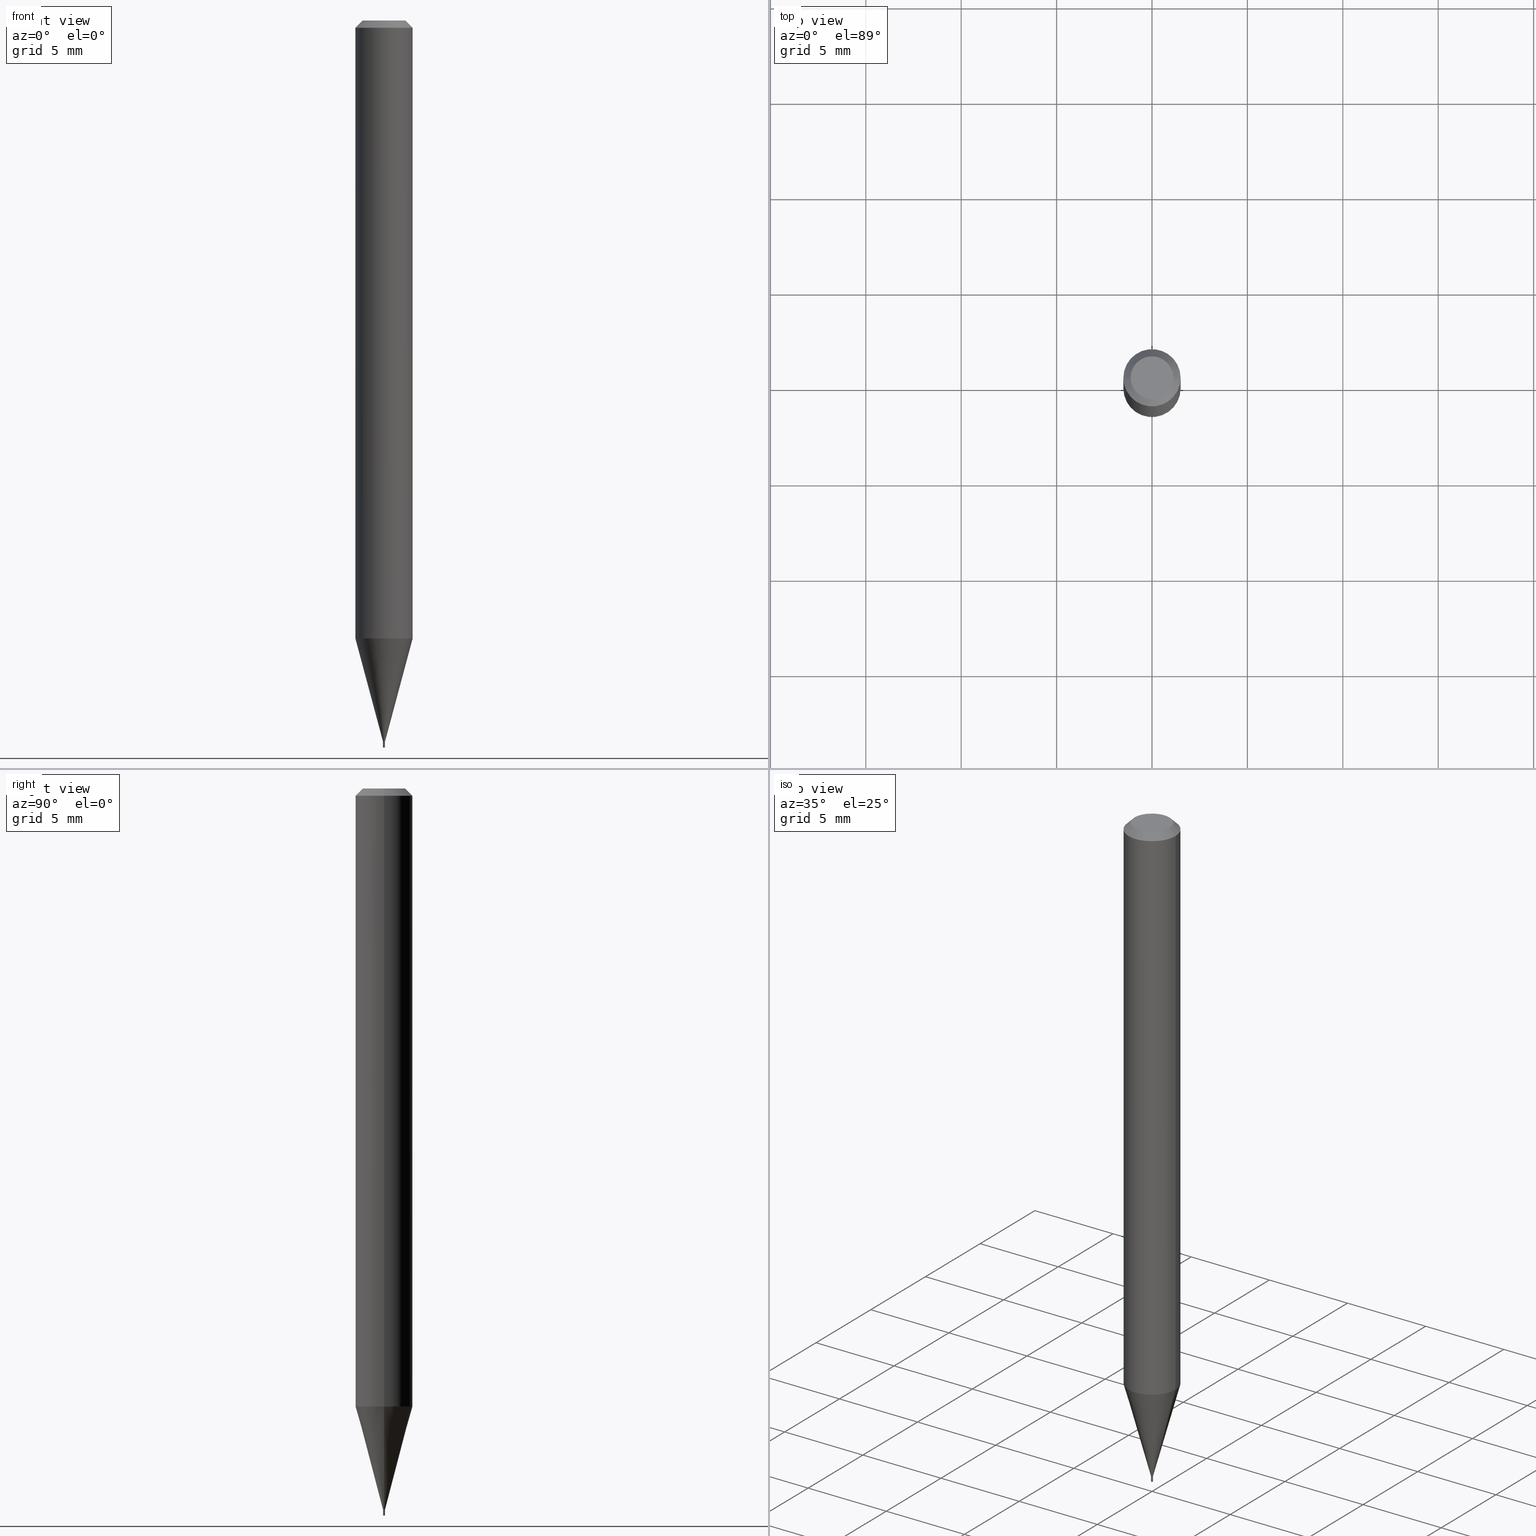
[diagram: canonical four-view strip — front | top / right | iso, engineering-drawing reading convention]
A machine part, canonical four-view strip (front | top / right | iso — engineering-drawing reading convention). The complete STEP part file that produces these views, byte-faithful:
ISO-10303-21;
HEADER;
FILE_DESCRIPTION (( 'STEP AP203' ),
    '1' );
FILE_NAME ('05090.STEP',
    '2024-03-14T17:49:04',
    ( '' ),
    ( '' ),
    'SwSTEP 2.0',
    'SolidWorks 2023',
    '' );
FILE_SCHEMA (( 'CONFIG_CONTROL_DESIGN' ));
ENDSEC;

DATA;
#1 = FACE_OUTER_BOUND ( 'NONE', #406, .T. ) ;
#2 = VERTEX_POINT ( 'NONE', #210 ) ;
#3 = VECTOR ( 'NONE', #192, 39.37007874015748143 ) ;
#4 = FACE_OUTER_BOUND ( 'NONE', #97, .T. ) ;
#5 = ADVANCED_BREP_SHAPE_REPRESENTATION ( '05090', ( #293, #458, #113 ), #306 ) ;
#6 = DIRECTION ( 'NONE',  ( -2.445468806185136597E-29, 3.491481338843145583E-15, 1.000000000000000000 ) ) ;
#7 = ADVANCED_FACE ( 'NONE', ( #423 ), #214, .F. ) ;
#8 = APPROVAL ( #204, 'UNSPECIFIED' ) ;
#9 = DIRECTION ( 'NONE',  ( -2.445468806185136597E-29, 3.491481338843145583E-15, 1.000000000000000000 ) ) ;
#10 = CARTESIAN_POINT ( 'NONE',  ( -0.001949999999999995574, -5.202766685018222429E-15, -1.500000000000000222 ) ) ;
#11 = APPLICATION_PROTOCOL_DEFINITION ( 'international standard', 'config_control_design', 1994, #302 ) ;
#12 = AXIS2_PLACEMENT_3D ( 'NONE', #389, #311, #313 ) ;
#13 = AXIS2_PLACEMENT_3D ( 'NONE', #312, #420, #104 ) ;
#14 = ORIENTED_EDGE ( 'NONE', *, *, #18, .T. ) ;
#15 = DIRECTION ( 'NONE',  ( 1.000000000000000000, 0.000000000000000000, 0.000000000000000000 ) ) ;
#16 = CARTESIAN_POINT ( 'NONE',  ( 3.639346677364720273E-29, -5.196022528466369115E-15, -1.488199999999999967 ) ) ;
#17 = AXIS2_PLACEMENT_3D ( 'NONE', #427, #239, #174 ) ;
#18 = EDGE_CURVE ( 'NONE', #2, #172, #332, .T. ) ;
#19 = APPROVAL_DATE_TIME ( #169, #92 ) ;
#20 = EDGE_LOOP ( 'NONE', ( #43, #261, #309, #341 ) ) ;
#21 = AXIS2_PLACEMENT_3D ( 'NONE', #33, #109, #156 ) ;
#22 = ORIENTED_EDGE ( 'NONE', *, *, #131, .T. ) ;
#23 = PERSON_AND_ORGANIZATION ( #314, #371 ) ;
#24 = EDGE_CURVE ( 'NONE', #125, #376, #398, .T. ) ;
#25 = VERTEX_POINT ( 'NONE', #73 ) ;
#26 = ORIENTED_EDGE ( 'NONE', *, *, #120, .T. ) ;
#27 = AXIS2_PLACEMENT_3D ( 'NONE', #244, #283, #72 ) ;
#28 = LOCAL_TIME ( 13, 49, 4.000000000000000000, #338 ) ;
#29 = EDGE_CURVE ( 'NONE', #454, #25, #300, .T. ) ;
#30 = ORIENTED_EDGE ( 'NONE', *, *, #70, .T. ) ;
#31 = LINE ( 'NONE', #425, #181 ) ;
#32 = FACE_OUTER_BOUND ( 'NONE', #197, .T. ) ;
#33 = CARTESIAN_POINT ( 'NONE',  ( 3.639346677364721394E-29, -5.196022528466369904E-15, -1.488200000000000189 ) ) ;
#34 = DIRECTION ( 'NONE',  ( 0.2588190451025214611, 1.565188264969621573E-15, 0.9659258262890682012 ) ) ;
#35 = ADVANCED_FACE ( 'NONE', ( #32 ), #350, .T. ) ;
#36 = CIRCLE ( 'NONE', #257, 0.001949999999999910139 ) ;
#37 = CC_DESIGN_SECURITY_CLASSIFICATION ( #103, ( #282 ) ) ;
#38 = DIRECTION ( 'NONE',  ( 2.438088387897960049E-29, -3.491481338843145188E-15, -1.000000000000000000 ) ) ;
#39 = DIRECTION ( 'NONE',  ( 1.000000000000000000, -6.982962677686453671E-15, 0.000000000000000000 ) ) ;
#40 = CALENDAR_DATE ( 2024, 14, 3 ) ;
#41 = CLOSED_SHELL ( 'NONE', ( #141, #327, #132, #139, #52, #451, #366, #35, #277, #89, #361, #7 ) ) ;
#42 = DIRECTION ( 'NONE',  ( 1.000000000000000000, -6.982962677686265922E-15, 4.876176775795935793E-29 ) ) ;
#43 = ORIENTED_EDGE ( 'NONE', *, *, #195, .F. ) ;
#44 = DIRECTION ( 'NONE',  ( -2.445468806185136597E-29, 3.491481338843145583E-15, 1.000000000000000000 ) ) ;
#45 = VECTOR ( 'NONE', #368, 39.37007874015748854 ) ;
#46 = CARTESIAN_POINT ( 'NONE',  ( -0.05904999999999999138, -4.032412016661256673E-15, -1.275099898887817274 ) ) ;
#47 = DIRECTION ( 'NONE',  ( 1.000000000000000000, -6.982962677686174414E-15, 0.000000000000000000 ) ) ;
#48 = AXIS2_PLACEMENT_3D ( 'NONE', #320, #145, #142 ) ;
#49 = LENGTH_MEASURE_WITH_UNIT ( LENGTH_MEASURE( 0.02539999999999999897 ), #77 );
#50 = ORIENTED_EDGE ( 'NONE', *, *, #419, .F. ) ;
#51 = CIRCLE ( 'NONE', #233, 0.04404999999999999888 ) ;
#52 = ADVANCED_FACE ( 'NONE', ( #460 ), #410, .T. ) ;
#53 = PRODUCT_RELATED_PRODUCT_CATEGORY ( 'detail', '', ( #287 ) ) ;
#54 = CALENDAR_DATE ( 2024, 14, 3 ) ;
#55 = ORIENTED_EDGE ( 'NONE', *, *, #347, .T. ) ;
#56 = PERSON_AND_ORGANIZATION ( #314, #371 ) ;
#57 = ORIENTED_EDGE ( 'NONE', *, *, #234, .F. ) ;
#58 = EDGE_LOOP ( 'NONE', ( #55, #449, #286, #377 ) ) ;
#59 = APPROVAL_ROLE ( '' ) ;
#60 = EDGE_LOOP ( 'NONE', ( #193, #163 ) ) ;
#61 = LINE ( 'NONE', #71, #121 ) ;
#62 = ORIENTED_EDGE ( 'NONE', *, *, #195, .T. ) ;
#63 = ORIENTED_EDGE ( 'NONE', *, *, #428, .T. ) ;
#64 = LINE ( 'NONE', #209, #452 ) ;
#65 = EDGE_CURVE ( 'NONE', #25, #172, #396, .T. ) ;
#66 = AXIS2_PLACEMENT_3D ( 'NONE', #317, #38, #176 ) ;
#67 = DIRECTION ( 'NONE',  ( -2.438088387897960049E-29, 3.491481338843145188E-15, 1.000000000000000000 ) ) ;
#68 = FACE_OUTER_BOUND ( 'NONE', #166, .T. ) ;
#69 = VERTEX_POINT ( 'NONE', #359 ) ;
#70 = EDGE_CURVE ( 'NONE', #199, #102, #263, .T. ) ;
#71 = CARTESIAN_POINT ( 'NONE',  ( 0.001449999999999994045, -5.206147824349015413E-15, -1.488200000000000189 ) ) ;
#72 = DIRECTION ( 'NONE',  ( 1.000000000000000000, -6.982962677686174414E-15, 0.000000000000000000 ) ) ;
#73 = CARTESIAN_POINT ( 'NONE',  ( 0.05904999999999999138, -4.864331448244970298E-15, -1.275099898887817274 ) ) ;
#74 = AXIS2_PLACEMENT_3D ( 'NONE', #285, #223, #290 ) ;
#75 = FACE_OUTER_BOUND ( 'NONE', #99, .T. ) ;
#76 = CARTESIAN_POINT ( 'NONE',  ( 0.000000000000000000, 0.000000000000000000, 0.000000000000000000 ) ) ;
#77 =( LENGTH_UNIT ( ) NAMED_UNIT ( * ) SI_UNIT ( $, .METRE. ) );
#78 = AXIS2_PLACEMENT_3D ( 'NONE', #76, #390, #349 ) ;
#79 = CC_DESIGN_PERSON_AND_ORGANIZATION_ASSIGNMENT ( #161, #265, ( #450 ) ) ;
#80 = DIRECTION ( 'NONE',  ( 1.000000000000000000, -6.982962677686265922E-15, 4.876176775795935793E-29 ) ) ;
#81 = CARTESIAN_POINT ( 'NONE',  ( 3.639346677364721394E-29, -5.196022528466369904E-15, -1.488200000000000189 ) ) ;
#82 = AXIS2_PLACEMENT_3D ( 'NONE', #215, #6, #217 ) ;
#83 =( NAMED_UNIT ( * ) SI_UNIT ( $, .STERADIAN. ) SOLID_ANGLE_UNIT ( ) );
#84 = AXIS2_PLACEMENT_3D ( 'NONE', #184, #246, #273 ) ;
#85 = CARTESIAN_POINT ( 'NONE',  ( 3.639346677364721394E-29, -5.196022528466369904E-15, -1.488200000000000189 ) ) ;
#86 = UNCERTAINTY_MEASURE_WITH_UNIT (LENGTH_MEASURE( 1.000000000000000082E-05 ), #358, 'distance_accuracy_value', 'NONE');
#87 = CC_DESIGN_PERSON_AND_ORGANIZATION_ASSIGNMENT ( #56, #167, ( #282 ) ) ;
#88 = APPROVAL_PERSON_ORGANIZATION ( #445, #397, #59 ) ;
#89 = ADVANCED_FACE ( 'NONE', ( #393 ), #212, .F. ) ;
#90 = APPROVAL_DATE_TIME ( #259, #397 ) ;
#91 = ORIENTED_EDGE ( 'NONE', *, *, #347, .F. ) ;
#92 = APPROVAL ( #380, 'UNSPECIFIED' ) ;
#93 = EDGE_LOOP ( 'NONE', ( #91, #370 ) ) ;
#94 = VECTOR ( 'NONE', #280, 39.37007874015748143 ) ;
#95 = ORIENTED_EDGE ( 'NONE', *, *, #310, .T. ) ;
#96 = CALENDAR_DATE ( 2024, 14, 3 ) ;
#97 = EDGE_LOOP ( 'NONE', ( #431, #418, #408, #201 ) ) ;
#98 = COORDINATED_UNIVERSAL_TIME_OFFSET ( 5, 0, .BEHIND. ) ;
#99 = EDGE_LOOP ( 'NONE', ( #298, #303, #447, #205 ) ) ;
#100 = EDGE_LOOP ( 'NONE', ( #114, #62 ) ) ;
#101 = DIRECTION ( 'NONE',  ( 2.438088387897960049E-29, -3.491481338843145188E-15, -1.000000000000000000 ) ) ;
#102 = VERTEX_POINT ( 'NONE', #180 ) ;
#103 = SECURITY_CLASSIFICATION ( '', '', #198 ) ;
#104 = DIRECTION ( 'NONE',  ( 1.000000000000000000, -6.982962677686265922E-15, 4.957392940945096353E-29 ) ) ;
#105 = EDGE_CURVE ( 'NONE', #203, #25, #346, .T. ) ;
#106 = CARTESIAN_POINT ( 'NONE',  ( 3.639346677364721394E-29, -5.196022528466369904E-15, -1.488200000000000189 ) ) ;
#107 = ADVANCED_FACE ( 'NONE', ( #1 ), #278, .T. ) ;
#108 = DIRECTION ( 'NONE',  ( -2.445468806185136877E-29, 3.491481338843145188E-15, 1.000000000000000000 ) ) ;
#109 = DIRECTION ( 'NONE',  ( -2.445468806185136597E-29, 3.491481338843145583E-15, 1.000000000000000000 ) ) ;
#110 = CARTESIAN_POINT ( 'NONE',  ( 3.668203209277704895E-29, -5.237222008264718177E-15, -1.500000000000000222 ) ) ;
#111 = DIRECTION ( 'NONE',  ( -2.445468806185136877E-29, 3.491481338843145188E-15, 1.000000000000000000 ) ) ;
#112 = DIRECTION ( 'NONE',  ( -2.445468806185136597E-29, 3.491481338843145583E-15, 1.000000000000000000 ) ) ;
#113 = AXIS2_PLACEMENT_3D ( 'NONE', #439, #331, #15 ) ;
#114 = ORIENTED_EDGE ( 'NONE', *, *, #136, .T. ) ;
#115 = FACE_OUTER_BOUND ( 'NONE', #93, .T. ) ;
#116 = CARTESIAN_POINT ( 'NONE',  ( 0.04404999999999999888, -3.798447818264435920E-16, 1.385461786529513839E-15 ) ) ;
#117 = FACE_OUTER_BOUND ( 'NONE', #232, .T. ) ;
#118 = DIRECTION ( 'NONE',  ( 1.000000000000000000, -6.982962677686461559E-15, 0.000000000000000000 ) ) ;
#119 = CARTESIAN_POINT ( 'NONE',  ( 0.05904999999999999832, -4.647161662000212105E-16, -0.01499999999999999944 ) ) ;
#120 = EDGE_CURVE ( 'NONE', #454, #2, #31, .T. ) ;
#121 = VECTOR ( 'NONE', #211, 39.37007874015748854 ) ;
#122 = DIRECTION ( 'NONE',  ( 1.000000000000000000, -6.982962677686480492E-15, 0.000000000000000000 ) ) ;
#123 = EDGE_CURVE ( 'NONE', #402, #379, #308, .T. ) ;
#124 = AXIS2_PLACEMENT_3D ( 'NONE', #143, #426, #459 ) ;
#125 = VERTEX_POINT ( 'NONE', #465 ) ;
#126 = ORIENTED_EDGE ( 'NONE', *, *, #310, .F. ) ;
#127 = DATE_AND_TIME ( #448, #266 ) ;
#128 = ORIENTED_EDGE ( 'NONE', *, *, #268, .T. ) ;
#129 = CIRCLE ( 'NONE', #289, 0.001949999999999995574 ) ;
#130 = ORIENTED_EDGE ( 'NONE', *, *, #29, .T. ) ;
#131 = EDGE_CURVE ( 'NONE', #379, #199, #392, .T. ) ;
#132 = ADVANCED_FACE ( 'NONE', ( #281 ), #146, .T. ) ;
#133 = ORIENTED_EDGE ( 'NONE', *, *, #105, .F. ) ;
#134 = SHAPE_DEFINITION_REPRESENTATION ( #144, #5 ) ;
#135 = CARTESIAN_POINT ( 'NONE',  ( 3.075995059520799729E-16, 0.04404999999999999888, 5.389311402887151581E-16 ) ) ;
#136 = EDGE_CURVE ( 'NONE', #69, #416, #415, .T. ) ;
#137 = CARTESIAN_POINT ( 'NONE',  ( 3.638123942961628593E-29, -5.194276787796948400E-15, -1.487700000000000466 ) ) ;
#138 = CARTESIAN_POINT ( 'NONE',  ( 0.001449999999999994045, -5.206147824349015413E-15, -1.488200000000000189 ) ) ;
#139 = ADVANCED_FACE ( 'NONE', ( #242 ), #225, .T. ) ;
#140 = AXIS2_PLACEMENT_3D ( 'NONE', #372, #399, #328 ) ;
#141 = ADVANCED_FACE ( 'NONE', ( #117 ), #325, .F. ) ;
#142 = DIRECTION ( 'NONE',  ( 1.000000000000000000, -6.982962677686266711E-15, 0.000000000000000000 ) ) ;
#143 = CARTESIAN_POINT ( 'NONE',  ( 3.639346677364720273E-29, -5.196022528466369115E-15, -1.488199999999999967 ) ) ;
#144 = PRODUCT_DEFINITION_SHAPE ( 'NONE', 'NONE',  #450 ) ;
#145 = DIRECTION ( 'NONE',  ( -2.445468806185136597E-29, 3.491481338843145583E-15, 1.000000000000000000 ) ) ;
#146 = CONICAL_SURFACE ( 'NONE', #17, 0.05904999999999999832, 0.7853981633974022047 ) ;
#147 = DIRECTION ( 'NONE',  ( -2.445468806185136877E-29, 3.491481338843145188E-15, 1.000000000000000000 ) ) ;
#148 = ORIENTED_EDGE ( 'NONE', *, *, #191, .F. ) ;
#149 = CARTESIAN_POINT ( 'NONE',  ( 0.001949999999999995574, -1.361677722148819006E-17, 9.508544712802053199E-32 ) ) ;
#150 = ORIENTED_EDGE ( 'NONE', *, *, #120, .F. ) ;
#151 = AXIS2_PLACEMENT_3D ( 'NONE', #249, #387, #315 ) ;
#152 = CARTESIAN_POINT ( 'NONE',  ( 0.001949999999999917728, -5.207893565018436917E-15, -1.487700000000000466 ) ) ;
#153 = DIRECTION ( 'NONE',  ( -2.445468806185136877E-29, 3.491481338843145188E-15, 1.000000000000000000 ) ) ;
#154 = CIRCLE ( 'NONE', #21, 0.001949999999999995574 ) ;
#155 = DIRECTION ( 'NONE',  ( -2.445468806185136597E-29, 3.491481338843145583E-15, 1.000000000000000000 ) ) ;
#156 = DIRECTION ( 'NONE',  ( 1.000000000000000000, -6.982962677686174414E-15, 0.000000000000000000 ) ) ;
#157 = CARTESIAN_POINT ( 'NONE',  ( -0.001949999999999910139, -5.182166945119047109E-15, -1.488199999999999967 ) ) ;
#158 = CIRCLE ( 'NONE', #248, 0.05904999999999999832 ) ;
#159 = DIRECTION ( 'NONE',  ( 1.000000000000000000, -6.982962677686273021E-15, 0.000000000000000000 ) ) ;
#160 = DIRECTION ( 'NONE',  ( 1.000000000000000000, -6.982962677686461559E-15, 0.000000000000000000 ) ) ;
#161 = PERSON_AND_ORGANIZATION ( #314, #371 ) ;
#162 = EDGE_CURVE ( 'NONE', #339, #295, #421, .T. ) ;
#163 = ORIENTED_EDGE ( 'NONE', *, *, #162, .F. ) ;
#164 = COORDINATED_UNIVERSAL_TIME_OFFSET ( 5, 0, .BEHIND. ) ;
#165 = CONICAL_SURFACE ( 'NONE', #221, 0.001449999999999994045, 0.7853981633974728149 ) ;
#166 = EDGE_LOOP ( 'NONE', ( #30, #250 ) ) ;
#167 = PERSON_AND_ORGANIZATION_ROLE ( 'design_supplier' ) ;
#168 = ORIENTED_EDGE ( 'NONE', *, *, #255, .T. ) ;
#169 = DATE_AND_TIME ( #54, #443 ) ;
#170 = EDGE_LOOP ( 'NONE', ( #57, #307, #95, #168 ) ) ;
#171 = CIRCLE ( 'NONE', #124, 0.001949999999999910139 ) ;
#172 = VERTEX_POINT ( 'NONE', #119 ) ;
#173 = DIRECTION ( 'NONE',  ( 1.000000000000000000, -6.982962677686267499E-15, 4.876176775795935793E-29 ) ) ;
#174 = DIRECTION ( 'NONE',  ( -1.000000000000000000, 6.982962677686266711E-15, 0.000000000000000000 ) ) ;
#175 = DATE_AND_TIME ( #40, #324 ) ;
#176 = DIRECTION ( 'NONE',  ( -1.000000000000000000, 6.982962677686265922E-15, -4.876176775795935793E-29 ) ) ;
#177 = DIRECTION ( 'NONE',  ( 1.000000000000000000, -6.982962677686174414E-15, 0.000000000000000000 ) ) ;
#178 = CARTESIAN_POINT ( 'NONE',  ( 0.000000000000000000, 0.000000000000000000, 0.000000000000000000 ) ) ;
#179 = AXIS2_PLACEMENT_3D ( 'NONE', #135, #101, #241 ) ;
#180 = CARTESIAN_POINT ( 'NONE',  ( -0.001949999999999995574, -5.202766685018222429E-15, -1.488200000000000189 ) ) ;
#181 = VECTOR ( 'NONE', #153, 39.37007874015748143 ) ;
#182 = CARTESIAN_POINT ( 'NONE',  ( 3.118217027499978944E-29, -4.451987502127596166E-15, -1.275099898887817274 ) ) ;
#183 = DIRECTION ( 'NONE',  ( 1.000000000000000000, -6.982962677686266711E-15, 0.000000000000000000 ) ) ;
#184 = CARTESIAN_POINT ( 'NONE',  ( 0.000000000000000000, 0.000000000000000000, 0.000000000000000000 ) ) ;
#185 = CARTESIAN_POINT ( 'NONE',  ( -0.05904999999999999832, 3.599717260347268549E-16, -0.01499999999999999944 ) ) ;
#186 = APPLICATION_PROTOCOL_DEFINITION ( 'international standard', 'config_control_design', 1994, #220 ) ;
#187 = APPROVAL_PERSON_ORGANIZATION ( #374, #92, #414 ) ;
#188 = EDGE_CURVE ( 'NONE', #339, #125, #256, .T. ) ;
#189 = CARTESIAN_POINT ( 'NONE',  ( 0.000000000000000000, 0.000000000000000000, 0.000000000000000000 ) ) ;
#190 = CARTESIAN_POINT ( 'NONE',  ( 3.668203209277705088E-31, -5.237222008264718399E-17, -0.01499999999999999944 ) ) ;
#191 = EDGE_CURVE ( 'NONE', #224, #203, #36, .T. ) ;
#192 = DIRECTION ( 'NONE',  ( -0.7071067811865149322, 2.468850131081915484E-15, -0.7071067811865801023 ) ) ;
#193 = ORIENTED_EDGE ( 'NONE', *, *, #373, .F. ) ;
#194 = CONICAL_SURFACE ( 'NONE', #354, 0.001949999999999910139, 0.2617993877991501295 ) ;
#195 = EDGE_CURVE ( 'NONE', #416, #69, #51, .T. ) ;
#196 = AXIS2_PLACEMENT_3D ( 'NONE', #137, #318, #39 ) ;
#197 = EDGE_LOOP ( 'NONE', ( #50, #235, #63, #14 ) ) ;
#198 = SECURITY_CLASSIFICATION_LEVEL ( 'unclassified' ) ;
#199 = VERTEX_POINT ( 'NONE', #272 ) ;
#200 = CONICAL_SURFACE ( 'NONE', #388, 0.001449999999999994045, 0.7853981633974728149 ) ;
#201 = ORIENTED_EDGE ( 'NONE', *, *, #29, .F. ) ;
#202 = COORDINATED_UNIVERSAL_TIME_OFFSET ( 5, 0, .BEHIND. ) ;
#203 = VERTEX_POINT ( 'NONE', #276 ) ;
#204 = APPROVAL_STATUS ( 'not_yet_approved' ) ;
#205 = ORIENTED_EDGE ( 'NONE', *, *, #24, .F. ) ;
#206 = VECTOR ( 'NONE', #34, 39.37007874015747433 ) ;
#207 = PLANE ( 'NONE',  #179 ) ;
#208 = CARTESIAN_POINT ( 'NONE',  ( 0.05904999999999999832, -4.123439461173740327E-16, 2.879382386107500220E-30 ) ) ;
#209 = CARTESIAN_POINT ( 'NONE',  ( -0.001949999999999914042, 1.385558334732134285E-17, -9.591923425996641937E-32 ) ) ;
#210 = CARTESIAN_POINT ( 'NONE',  ( -0.05904999999999999832, -1.832604375638782327E-15, -0.01499999999999999944 ) ) ;
#211 = DIRECTION ( 'NONE',  ( 0.7071067811865647812, -2.468850131082438104E-15, 0.7071067811865301422 ) ) ;
#212 = PLANE ( 'NONE',  #335 ) ;
#213 = AXIS2_PLACEMENT_3D ( 'NONE', #189, #218, #362 ) ;
#214 = CYLINDRICAL_SURFACE ( 'NONE', #78, 0.001949999999999914042 ) ;
#215 = CARTESIAN_POINT ( 'NONE',  ( 0.000000000000000000, 0.000000000000000000, 0.000000000000000000 ) ) ;
#216 = DIRECTION ( 'NONE',  ( 2.445468806185136597E-29, -3.491481338843145583E-15, -1.000000000000000000 ) ) ;
#217 = DIRECTION ( 'NONE',  ( 1.000000000000000000, -6.982962677686266711E-15, 4.876176775795936353E-29 ) ) ;
#218 = DIRECTION ( 'NONE',  ( -2.445468806185136597E-29, 3.491481338843145583E-15, 1.000000000000000000 ) ) ;
#219 = CARTESIAN_POINT ( 'NONE',  ( 3.639346677364720273E-29, -5.196022528466369115E-15, -1.488199999999999967 ) ) ;
#220 = APPLICATION_CONTEXT ( 'configuration controlled 3d designs of mechanical parts and assemblies' ) ;
#221 = AXIS2_PLACEMENT_3D ( 'NONE', #106, #391, #424 ) ;
#222 = CARTESIAN_POINT ( 'NONE',  ( -0.001449999999999994045, -5.185719658797848008E-15, -1.488200000000000189 ) ) ;
#223 = DIRECTION ( 'NONE',  ( -2.445468806185136597E-29, 3.491481338843145583E-15, 1.000000000000000000 ) ) ;
#224 = VERTEX_POINT ( 'NONE', #464 ) ;
#225 = CYLINDRICAL_SURFACE ( 'NONE', #213, 0.05904999999999999832 ) ;
#226 = CC_DESIGN_APPROVAL ( #92, ( #450 ) ) ;
#227 = PERSON_AND_ORGANIZATION_ROLE ( 'creator' ) ;
#228 = ORIENTED_EDGE ( 'NONE', *, *, #18, .F. ) ;
#229 = ADVANCED_FACE ( 'NONE', ( #68 ), #269, .F. ) ;
#230 = PERSON_AND_ORGANIZATION_ROLE ( 'classification_officer' ) ;
#231 = ADVANCED_FACE ( 'NONE', ( #238 ), #462, .T. ) ;
#232 = EDGE_LOOP ( 'NONE', ( #148, #413, #453, #126 ) ) ;
#233 = AXIS2_PLACEMENT_3D ( 'NONE', #319, #355, #417 ) ;
#234 = EDGE_CURVE ( 'NONE', #224, #125, #64, .T. ) ;
#235 = ORIENTED_EDGE ( 'NONE', *, *, #136, .F. ) ;
#236 = APPROVAL_STATUS ( 'not_yet_approved' ) ;
#237 = ORIENTED_EDGE ( 'NONE', *, *, #123, .T. ) ;
#238 = FACE_OUTER_BOUND ( 'NONE', #58, .T. ) ;
#239 = DIRECTION ( 'NONE',  ( 2.445468806185136597E-29, -3.491481338843145583E-15, -1.000000000000000000 ) ) ;
#240 = LOCAL_TIME ( 13, 49, 4.000000000000000000, #202 ) ;
#241 = DIRECTION ( 'NONE',  ( -1.000000000000000000, 6.982962677686265922E-15, -4.876176775795935793E-29 ) ) ;
#242 = FACE_OUTER_BOUND ( 'NONE', #403, .T. ) ;
#243 = LINE ( 'NONE', #348, #94 ) ;
#244 = CARTESIAN_POINT ( 'NONE',  ( 3.639346677364721394E-29, -5.196022528466369904E-15, -1.488200000000000189 ) ) ;
#245 = CLOSED_SHELL ( 'NONE', ( #231, #441, #107, #229 ) ) ;
#246 = DIRECTION ( 'NONE',  ( -2.445468806185136597E-29, 3.491481338843145583E-15, 1.000000000000000000 ) ) ;
#247 = EDGE_CURVE ( 'NONE', #402, #102, #243, .T. ) ;
#248 = AXIS2_PLACEMENT_3D ( 'NONE', #258, #400, #159 ) ;
#249 = CARTESIAN_POINT ( 'NONE',  ( 3.639346677364720273E-29, -5.196022528466369115E-15, -1.488199999999999967 ) ) ;
#250 = ORIENTED_EDGE ( 'NONE', *, *, #344, .T. ) ;
#251 = PERSON_AND_ORGANIZATION_ROLE ( 'design_owner' ) ;
#252 = DIRECTION ( 'NONE',  ( 1.000000000000000000, -6.982962677686480492E-15, 0.000000000000000000 ) ) ;
#253 = DIRECTION ( 'NONE',  ( 0.7071067811865149322, -7.319954787623147183E-15, -0.7071067811865801023 ) ) ;
#254 = VECTOR ( 'NONE', #108, 39.37007874015748143 ) ;
#255 = EDGE_CURVE ( 'NONE', #376, #125, #330, .T. ) ;
#256 = LINE ( 'NONE', #222, #45 ) ;
#257 = AXIS2_PLACEMENT_3D ( 'NONE', #16, #9, #252 ) ;
#258 = CARTESIAN_POINT ( 'NONE',  ( 3.118217027499978944E-29, -4.451987502127596166E-15, -1.275099898887817274 ) ) ;
#259 = DATE_AND_TIME ( #442, #240 ) ;
#260 = ORIENTED_EDGE ( 'NONE', *, *, #255, .F. ) ;
#261 = ORIENTED_EDGE ( 'NONE', *, *, #419, .T. ) ;
#262 =( NAMED_UNIT ( * ) PLANE_ANGLE_UNIT ( ) SI_UNIT ( $, .RADIAN. ) );
#263 = CIRCLE ( 'NONE', #27, 0.001949999999999995574 ) ;
#264 = ORIENTED_EDGE ( 'NONE', *, *, #247, .F. ) ;
#265 = PERSON_AND_ORGANIZATION_ROLE ( 'creator' ) ;
#266 = LOCAL_TIME ( 13, 49, 4.000000000000000000, #299 ) ;
#267 = ORIENTED_EDGE ( 'NONE', *, *, #401, .F. ) ;
#268 = EDGE_CURVE ( 'NONE', #203, #224, #171, .T. ) ;
#269 = PLANE ( 'NONE',  #66 ) ;
#270 = CC_DESIGN_PERSON_AND_ORGANIZATION_ASSIGNMENT ( #440, #251, ( #287 ) ) ;
#271 = ORIENTED_EDGE ( 'NONE', *, *, #373, .T. ) ;
#272 = CARTESIAN_POINT ( 'NONE',  ( 0.001949999999999995574, -5.209639305687857631E-15, -1.488200000000000189 ) ) ;
#273 = DIRECTION ( 'NONE',  ( 1.000000000000000000, -6.982962677686267499E-15, 4.876176775795935793E-29 ) ) ;
#274 = LINE ( 'NONE', #422, #404 ) ;
#275 = DIRECTION ( 'NONE',  ( -1.000000000000000000, 6.982962677686266711E-15, 0.000000000000000000 ) ) ;
#276 = CARTESIAN_POINT ( 'NONE',  ( 0.001949999999999910139, -5.209639305687856843E-15, -1.488199999999999967 ) ) ;
#277 = ADVANCED_FACE ( 'NONE', ( #455 ), #207, .F. ) ;
#278 = CYLINDRICAL_SURFACE ( 'NONE', #84, 0.001949999999999995574 ) ;
#279 = CC_DESIGN_DATE_AND_TIME_ASSIGNMENT ( #296, #305, ( #450 ) ) ;
#280 = DIRECTION ( 'NONE',  ( -2.445468806185136877E-29, 3.491481338843145188E-15, 1.000000000000000000 ) ) ;
#281 = FACE_OUTER_BOUND ( 'NONE', #20, .T. ) ;
#282 = PRODUCT_DEFINITION_FORMATION_WITH_SPECIFIED_SOURCE ( 'ANY', '', #287, .NOT_KNOWN. ) ;
#283 = DIRECTION ( 'NONE',  ( -2.445468806185136597E-29, 3.491481338843145583E-15, 1.000000000000000000 ) ) ;
#284 = CYLINDRICAL_SURFACE ( 'NONE', #82, 0.05904999999999999832 ) ;
#285 = CARTESIAN_POINT ( 'NONE',  ( 3.639346677364721394E-29, -5.196022528466369904E-15, -1.488200000000000189 ) ) ;
#286 = ORIENTED_EDGE ( 'NONE', *, *, #70, .F. ) ;
#287 = PRODUCT ( '05090', '05090', '', ( #291 ) ) ;
#288 = CARTESIAN_POINT ( 'NONE',  ( 0.001949999999999995574, -5.250838785486206693E-15, -1.500000000000000222 ) ) ;
#289 = AXIS2_PLACEMENT_3D ( 'NONE', #433, #44, #47 ) ;
#290 = DIRECTION ( 'NONE',  ( 1.000000000000000000, -6.982962677686461559E-15, 0.000000000000000000 ) ) ;
#291 = MECHANICAL_CONTEXT ( 'NONE', #302, 'mechanical' ) ;
#292 = ORIENTED_EDGE ( 'NONE', *, *, #65, .F. ) ;
#293 = MANIFOLD_SOLID_BREP ( 'Body-Move/Copy2[1]', #245 ) ;
#294 = CC_DESIGN_APPROVAL ( #397, ( #282 ) ) ;
#295 = VERTEX_POINT ( 'NONE', #138 ) ;
#296 = DATE_AND_TIME ( #96, #28 ) ;
#297 = CC_DESIGN_DATE_AND_TIME_ASSIGNMENT ( #127, #340, ( #103 ) ) ;
#298 = ORIENTED_EDGE ( 'NONE', *, *, #188, .F. ) ;
#299 = COORDINATED_UNIVERSAL_TIME_OFFSET ( 5, 0, .BEHIND. ) ;
#300 = CIRCLE ( 'NONE', #369, 0.05904999999999999832 ) ;
#301 = AXIS2_PLACEMENT_3D ( 'NONE', #356, #216, #275 ) ;
#302 = APPLICATION_CONTEXT ( 'configuration controlled 3d designs of mechanical parts and assemblies' ) ;
#303 = ORIENTED_EDGE ( 'NONE', *, *, #162, .T. ) ;
#304 = EDGE_LOOP ( 'NONE', ( #150, #130, #337, #228 ) ) ;
#305 = DATE_TIME_ROLE ( 'creation_date' ) ;
#306 =( GEOMETRIC_REPRESENTATION_CONTEXT ( 3 ) GLOBAL_UNCERTAINTY_ASSIGNED_CONTEXT ( ( #86 ) ) GLOBAL_UNIT_ASSIGNED_CONTEXT ( ( #358, #262, #83 ) ) REPRESENTATION_CONTEXT ( 'NONE', 'WORKASPACE' ) );
#307 = ORIENTED_EDGE ( 'NONE', *, *, #268, .F. ) ;
#308 = CIRCLE ( 'NONE', #367, 0.001949999999999995574 ) ;
#309 = ORIENTED_EDGE ( 'NONE', *, *, #401, .T. ) ;
#310 = EDGE_CURVE ( 'NONE', #203, #376, #274, .T. ) ;
#311 = DIRECTION ( 'NONE',  ( -2.445468806185136597E-29, 3.491481338843145583E-15, 1.000000000000000000 ) ) ;
#312 = CARTESIAN_POINT ( 'NONE',  ( -3.388103581119451124E-44, 4.837313973348075593E-30, 1.385461786529511472E-15 ) ) ;
#313 = DIRECTION ( 'NONE',  ( 1.000000000000000000, -6.982962677686453671E-15, 0.000000000000000000 ) ) ;
#314 = PERSON ( 'UNSPECIFIED', 'UNSPECIFIED', 'UNSPECIFIED', ('UNSPECIFIED'), ('UNSPECIFIED'), ('UNSPECIFIED') ) ;
#315 = DIRECTION ( 'NONE',  ( 1.000000000000000000, -6.982962677686480492E-15, 0.000000000000000000 ) ) ;
#316 = VECTOR ( 'NONE', #438, 39.37007874015747433 ) ;
#317 = CARTESIAN_POINT ( 'NONE',  ( 1.361677722152458089E-17, 0.001949999999994799426, -1.488200000000000189 ) ) ;
#318 = DIRECTION ( 'NONE',  ( -2.445468806185136597E-29, 3.491481338843145583E-15, 1.000000000000000000 ) ) ;
#319 = CARTESIAN_POINT ( 'NONE',  ( -3.388103581119451124E-44, 4.837313973348075593E-30, 1.385461786529511472E-15 ) ) ;
#320 = CARTESIAN_POINT ( 'NONE',  ( 3.668203209277705088E-31, -5.237222008264718399E-17, -0.01499999999999999944 ) ) ;
#321 = CARTESIAN_POINT ( 'NONE',  ( 0.05904999999999999832, -4.574846268510561447E-16, -0.01499999999999999944 ) ) ;
#322 = CARTESIAN_POINT ( 'NONE',  ( 3.639346677364721394E-29, -5.196022528466369904E-15, -1.488200000000000189 ) ) ;
#323 = PLANE ( 'NONE',  #378 ) ;
#324 = LOCAL_TIME ( 13, 49, 4.000000000000000000, #98 ) ;
#325 = CYLINDRICAL_SURFACE ( 'NONE', #140, 0.001949999999999914042 ) ;
#326 = DIRECTION ( 'NONE',  ( -2.445468806185136597E-29, 3.491481338843145583E-15, 1.000000000000000000 ) ) ;
#327 = ADVANCED_FACE ( 'NONE', ( #383 ), #165, .T. ) ;
#328 = DIRECTION ( 'NONE',  ( 1.000000000000000000, -6.982962677686265922E-15, 4.876176775795935232E-29 ) ) ;
#329 = DIRECTION ( 'NONE',  ( -2.438088387897960049E-29, 3.491481338843145188E-15, 1.000000000000000000 ) ) ;
#330 = CIRCLE ( 'NONE', #12, 0.001949999999999917728 ) ;
#331 = DIRECTION ( 'NONE',  ( 0.000000000000000000, 0.000000000000000000, 1.000000000000000000 ) ) ;
#332 = CIRCLE ( 'NONE', #48, 0.05904999999999999832 ) ;
#333 = EDGE_LOOP ( 'NONE', ( #128, #456, #375, #133 ) ) ;
#334 = EDGE_CURVE ( 'NONE', #295, #376, #61, .T. ) ;
#335 = AXIS2_PLACEMENT_3D ( 'NONE', #322, #67, #42 ) ;
#336 = AXIS2_PLACEMENT_3D ( 'NONE', #190, #360, #183 ) ;
#337 = ORIENTED_EDGE ( 'NONE', *, *, #65, .T. ) ;
#338 = COORDINATED_UNIVERSAL_TIME_OFFSET ( 5, 0, .BEHIND. ) ;
#339 = VERTEX_POINT ( 'NONE', #351 ) ;
#340 = DATE_TIME_ROLE ( 'classification_date' ) ;
#341 = ORIENTED_EDGE ( 'NONE', *, *, #428, .F. ) ;
#342 = ORIENTED_EDGE ( 'NONE', *, *, #188, .T. ) ;
#343 = CIRCLE ( 'NONE', #74, 0.001449999999999994045 ) ;
#344 = EDGE_CURVE ( 'NONE', #102, #199, #154, .T. ) ;
#345 = APPROVAL_DATE_TIME ( #175, #8 ) ;
#346 = LINE ( 'NONE', #463, #206 ) ;
#347 = EDGE_CURVE ( 'NONE', #379, #402, #129, .T. ) ;
#348 = CARTESIAN_POINT ( 'NONE',  ( -0.001949999999999995574, 1.385558334732192217E-17, -9.591923425997044810E-32 ) ) ;
#349 = DIRECTION ( 'NONE',  ( 1.000000000000000000, -6.982962677686265922E-15, 4.876176775795935232E-29 ) ) ;
#350 = CONICAL_SURFACE ( 'NONE', #301, 0.05904999999999999832, 0.7853981633974022047 ) ;
#351 = CARTESIAN_POINT ( 'NONE',  ( -0.001449999999999994045, -5.183070431623737596E-15, -1.488200000000000189 ) ) ;
#352 = CC_DESIGN_PERSON_AND_ORGANIZATION_ASSIGNMENT ( #407, #230, ( #103 ) ) ;
#353 = DIRECTION ( 'NONE',  ( 1.000000000000000000, -6.982962677686273021E-15, 0.000000000000000000 ) ) ;
#354 = AXIS2_PLACEMENT_3D ( 'NONE', #219, #155, #122 ) ;
#355 = DIRECTION ( 'NONE',  ( -2.445468806185136597E-29, 3.491481338843145583E-15, 1.000000000000000000 ) ) ;
#356 = CARTESIAN_POINT ( 'NONE',  ( 3.668203209277705088E-31, -5.237222008264718399E-17, -0.01499999999999999944 ) ) ;
#357 = LINE ( 'NONE', #321, #395 ) ;
#358 =( CONVERSION_BASED_UNIT ( 'INCH', #49 ) LENGTH_UNIT ( ) NAMED_UNIT ( #386 ) );
#359 = CARTESIAN_POINT ( 'NONE',  ( -0.04404999999999999888, 3.337856159934058298E-16, 1.385461786529509303E-15 ) ) ;
#360 = DIRECTION ( 'NONE',  ( -2.445468806185136597E-29, 3.491481338843145583E-15, 1.000000000000000000 ) ) ;
#361 = ADVANCED_FACE ( 'NONE', ( #75 ), #200, .T. ) ;
#362 = DIRECTION ( 'NONE',  ( 1.000000000000000000, -6.982962677686266711E-15, 4.876176775795936353E-29 ) ) ;
#363 = FACE_OUTER_BOUND ( 'NONE', #304, .T. ) ;
#364 = AXIS2_PLACEMENT_3D ( 'NONE', #81, #436, #160 ) ;
#365 = LINE ( 'NONE', #185, #3 ) ;
#366 = ADVANCED_FACE ( 'NONE', ( #363 ), #284, .T. ) ;
#367 = AXIS2_PLACEMENT_3D ( 'NONE', #110, #457, #177 ) ;
#368 = DIRECTION ( 'NONE',  ( -0.7071067811865647812, 7.493145998870415691E-15, 0.7071067811865301422 ) ) ;
#369 = AXIS2_PLACEMENT_3D ( 'NONE', #182, #112, #353 ) ;
#370 = ORIENTED_EDGE ( 'NONE', *, *, #123, .F. ) ;
#371 = ORGANIZATION ( 'UNSPECIFIED', 'UNSPECIFIED', '' ) ;
#372 = CARTESIAN_POINT ( 'NONE',  ( 0.000000000000000000, 0.000000000000000000, 0.000000000000000000 ) ) ;
#373 = EDGE_CURVE ( 'NONE', #295, #339, #343, .T. ) ;
#374 = PERSON_AND_ORGANIZATION ( #314, #371 ) ;
#375 = ORIENTED_EDGE ( 'NONE', *, *, #466, .F. ) ;
#376 = VERTEX_POINT ( 'NONE', #152 ) ;
#377 = ORIENTED_EDGE ( 'NONE', *, *, #131, .F. ) ;
#378 = AXIS2_PLACEMENT_3D ( 'NONE', #435, #329, #80 ) ;
#379 = VERTEX_POINT ( 'NONE', #288 ) ;
#380 = APPROVAL_STATUS ( 'not_yet_approved' ) ;
#381 = ORIENTED_EDGE ( 'NONE', *, *, #466, .T. ) ;
#382 = PERSON_AND_ORGANIZATION ( #314, #371 ) ;
#383 = FACE_OUTER_BOUND ( 'NONE', #444, .T. ) ;
#384 = ORIENTED_EDGE ( 'NONE', *, *, #334, .F. ) ;
#385 = DIRECTION ( 'NONE',  ( -2.445468806185136597E-29, 3.491481338843145583E-15, 1.000000000000000000 ) ) ;
#386 = DIMENSIONAL_EXPONENTS ( 1.000000000000000000, 0.000000000000000000, 0.000000000000000000, 0.000000000000000000, 0.000000000000000000, 0.000000000000000000, 0.000000000000000000 ) ;
#387 = DIRECTION ( 'NONE',  ( -2.445468806185136597E-29, 3.491481338843145583E-15, 1.000000000000000000 ) ) ;
#388 = AXIS2_PLACEMENT_3D ( 'NONE', #85, #326, #118 ) ;
#389 = CARTESIAN_POINT ( 'NONE',  ( 3.638123942961628593E-29, -5.194276787796948400E-15, -1.487700000000000466 ) ) ;
#390 = DIRECTION ( 'NONE',  ( -2.445468806185136597E-29, 3.491481338843145583E-15, 1.000000000000000000 ) ) ;
#391 = DIRECTION ( 'NONE',  ( -2.445468806185136597E-29, 3.491481338843145583E-15, 1.000000000000000000 ) ) ;
#392 = LINE ( 'NONE', #149, #446 ) ;
#393 = FACE_OUTER_BOUND ( 'NONE', #60, .T. ) ;
#394 = APPROVAL_ROLE ( '' ) ;
#395 = VECTOR ( 'NONE', #253, 39.37007874015748143 ) ;
#396 = LINE ( 'NONE', #208, #254 ) ;
#397 = APPROVAL ( #236, 'UNSPECIFIED' ) ;
#398 = CIRCLE ( 'NONE', #196, 0.001949999999999917728 ) ;
#399 = DIRECTION ( 'NONE',  ( -2.445468806185136597E-29, 3.491481338843145583E-15, 1.000000000000000000 ) ) ;
#400 = DIRECTION ( 'NONE',  ( -2.445468806185136597E-29, 3.491481338843145583E-15, 1.000000000000000000 ) ) ;
#401 = EDGE_CURVE ( 'NONE', #172, #2, #461, .T. ) ;
#402 = VERTEX_POINT ( 'NONE', #10 ) ;
#403 = EDGE_LOOP ( 'NONE', ( #381, #26, #267, #292 ) ) ;
#404 = VECTOR ( 'NONE', #111, 39.37007874015748143 ) ;
#405 = CC_DESIGN_APPROVAL ( #8, ( #103 ) ) ;
#406 = EDGE_LOOP ( 'NONE', ( #264, #237, #22, #409 ) ) ;
#407 = PERSON_AND_ORGANIZATION ( #314, #371 ) ;
#408 = ORIENTED_EDGE ( 'NONE', *, *, #105, .T. ) ;
#409 = ORIENTED_EDGE ( 'NONE', *, *, #344, .F. ) ;
#410 = CONICAL_SURFACE ( 'NONE', #151, 0.001949999999999910139, 0.2617993877991501295 ) ;
#411 = EDGE_CURVE ( 'NONE', #224, #454, #430, .T. ) ;
#412 = AXIS2_PLACEMENT_3D ( 'NONE', #178, #385, #173 ) ;
#413 = ORIENTED_EDGE ( 'NONE', *, *, #234, .T. ) ;
#414 = APPROVAL_ROLE ( '' ) ;
#415 = CIRCLE ( 'NONE', #13, 0.04404999999999999888 ) ;
#416 = VERTEX_POINT ( 'NONE', #116 ) ;
#417 = DIRECTION ( 'NONE',  ( 1.000000000000000000, -6.982962677686265922E-15, 4.957392940945096353E-29 ) ) ;
#418 = ORIENTED_EDGE ( 'NONE', *, *, #191, .T. ) ;
#419 = EDGE_CURVE ( 'NONE', #416, #172, #357, .T. ) ;
#420 = DIRECTION ( 'NONE',  ( -2.445468806185136597E-29, 3.491481338843145583E-15, 1.000000000000000000 ) ) ;
#421 = CIRCLE ( 'NONE', #364, 0.001449999999999994045 ) ;
#422 = CARTESIAN_POINT ( 'NONE',  ( 0.001949999999999914042, -1.361677722148761844E-17, 9.508544712801654704E-32 ) ) ;
#423 = FACE_OUTER_BOUND ( 'NONE', #170, .T. ) ;
#424 = DIRECTION ( 'NONE',  ( 1.000000000000000000, -6.982962677686461559E-15, 0.000000000000000000 ) ) ;
#425 = CARTESIAN_POINT ( 'NONE',  ( -0.05904999999999999832, 4.195754854663391478E-16, -2.904631170795521892E-30 ) ) ;
#426 = DIRECTION ( 'NONE',  ( -2.445468806185136597E-29, 3.491481338843145583E-15, 1.000000000000000000 ) ) ;
#427 = CARTESIAN_POINT ( 'NONE',  ( 3.668203209277705088E-31, -5.237222008264718399E-17, -0.01499999999999999944 ) ) ;
#428 = EDGE_CURVE ( 'NONE', #69, #2, #365, .T. ) ;
#429 = APPROVAL_PERSON_ORGANIZATION ( #382, #8, #394 ) ;
#430 = LINE ( 'NONE', #157, #316 ) ;
#431 = ORIENTED_EDGE ( 'NONE', *, *, #411, .F. ) ;
#432 = DIRECTION ( 'NONE',  ( -2.445468806185136877E-29, 3.491481338843145188E-15, 1.000000000000000000 ) ) ;
#433 = CARTESIAN_POINT ( 'NONE',  ( 3.668203209277704895E-29, -5.237222008264718177E-15, -1.500000000000000222 ) ) ;
#434 = DESIGN_CONTEXT ( 'detailed design', #220, 'design' ) ;
#435 = CARTESIAN_POINT ( 'NONE',  ( 3.576687321579069994E-29, -5.368277968210015545E-15, -1.500000000000000222 ) ) ;
#436 = DIRECTION ( 'NONE',  ( -2.445468806185136597E-29, 3.491481338843145583E-15, 1.000000000000000000 ) ) ;
#437 = CC_DESIGN_PERSON_AND_ORGANIZATION_ASSIGNMENT ( #23, #227, ( #282 ) ) ;
#438 = DIRECTION ( 'NONE',  ( -0.2588190451025214611, 5.211531920934551042E-15, 0.9659258262890682012 ) ) ;
#439 = CARTESIAN_POINT ( 'NONE',  ( 0.000000000000000000, 0.000000000000000000, 0.000000000000000000 ) ) ;
#440 = PERSON_AND_ORGANIZATION ( #314, #371 ) ;
#441 = ADVANCED_FACE ( 'NONE', ( #115 ), #323, .F. ) ;
#442 = CALENDAR_DATE ( 2024, 14, 3 ) ;
#443 = LOCAL_TIME ( 13, 49, 4.000000000000000000, #164 ) ;
#444 = EDGE_LOOP ( 'NONE', ( #271, #342, #260, #384 ) ) ;
#445 = PERSON_AND_ORGANIZATION ( #314, #371 ) ;
#446 = VECTOR ( 'NONE', #432, 39.37007874015748143 ) ;
#447 = ORIENTED_EDGE ( 'NONE', *, *, #334, .T. ) ;
#448 = CALENDAR_DATE ( 2024, 14, 3 ) ;
#449 = ORIENTED_EDGE ( 'NONE', *, *, #247, .T. ) ;
#450 = PRODUCT_DEFINITION ( 'UNKNOWN', '', #282, #434 ) ;
#451 = ADVANCED_FACE ( 'NONE', ( #4 ), #194, .T. ) ;
#452 = VECTOR ( 'NONE', #147, 39.37007874015748143 ) ;
#453 = ORIENTED_EDGE ( 'NONE', *, *, #24, .T. ) ;
#454 = VERTEX_POINT ( 'NONE', #46 ) ;
#455 = FACE_OUTER_BOUND ( 'NONE', #100, .T. ) ;
#456 = ORIENTED_EDGE ( 'NONE', *, *, #411, .T. ) ;
#457 = DIRECTION ( 'NONE',  ( -2.445468806185136597E-29, 3.491481338843145583E-15, 1.000000000000000000 ) ) ;
#458 = MANIFOLD_SOLID_BREP ( 'Body-Move/Copy2[2]', #41 ) ;
#459 = DIRECTION ( 'NONE',  ( 1.000000000000000000, -6.982962677686480492E-15, 0.000000000000000000 ) ) ;
#460 = FACE_OUTER_BOUND ( 'NONE', #333, .T. ) ;
#461 = CIRCLE ( 'NONE', #336, 0.05904999999999999832 ) ;
#462 = CYLINDRICAL_SURFACE ( 'NONE', #412, 0.001949999999999995574 ) ;
#463 = CARTESIAN_POINT ( 'NONE',  ( 0.001949999999999910139, -5.209639305687856843E-15, -1.488199999999999967 ) ) ;
#464 = CARTESIAN_POINT ( 'NONE',  ( -0.001949999999999910139, -4.607289480890151497E-15, -1.488199999999999967 ) ) ;
#465 = CARTESIAN_POINT ( 'NONE',  ( -0.001949999999999917728, -5.180421204449627184E-15, -1.487700000000000466 ) ) ;
#466 = EDGE_CURVE ( 'NONE', #25, #454, #158, .T. ) ;
ENDSEC;
END-ISO-10303-21;
